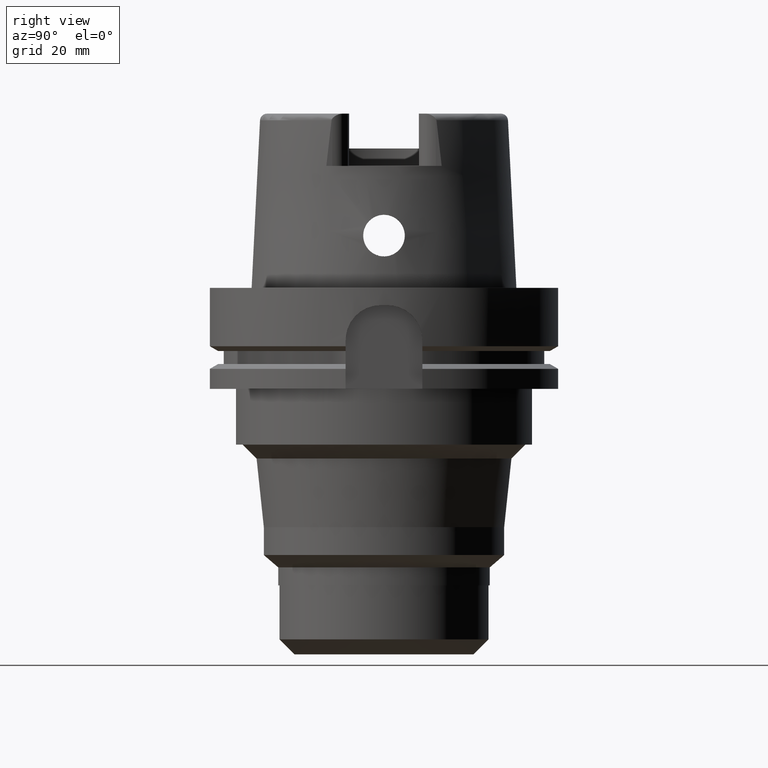
[diagram: clean part render]
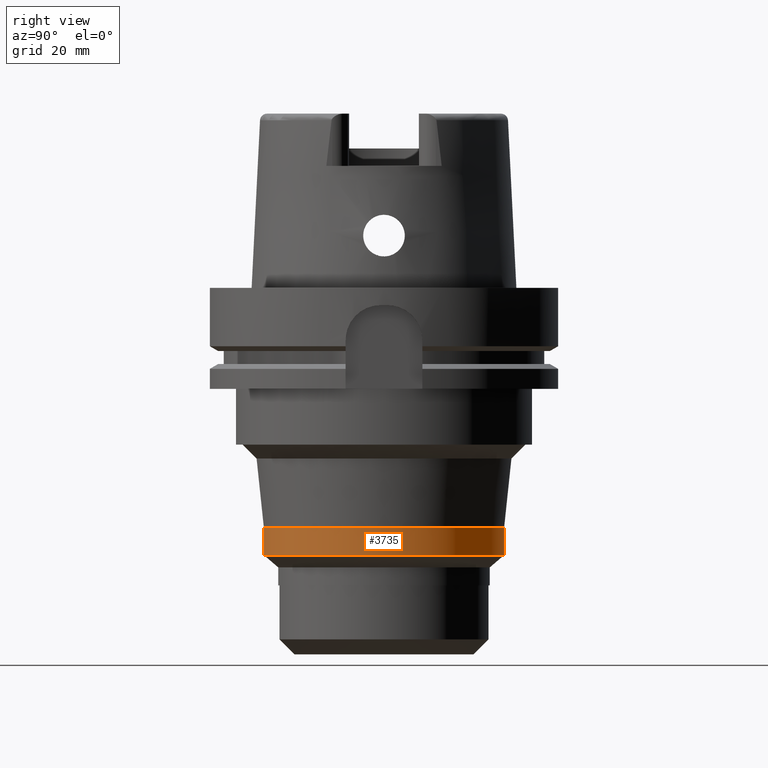
[diagram: same view with one face highlighted and labeled with its STEP entity id]
A machine part, right view. The second image highlights one B-rep face of the part: STEP entity #3735.
In plain terms, the highlighted cylindrical surface (partial cylindrical patch) has radius 34.5 mm, axis along (0, 0, -1).
Its self-contained STEP definition (entity closure, byte-faithful):
#1330=CARTESIAN_POINT('',(0.E0,0.E0,-7.67E1));
#1331=DIRECTION('',(0.E0,0.E0,1.E0));
#1332=DIRECTION('',(0.E0,-1.E0,0.E0));
#1333=AXIS2_PLACEMENT_3D('',#1330,#1331,#1332);
#1338=DIRECTION('',(0.E0,6.838973831691E-14,-1.E0));
#1339=VECTOR('',#1338,8.E0);
#1340=CARTESIAN_POINT('',(0.E0,3.45E1,-6.87E1));
#1341=LINE('',#1340,#1339);
#1345=DIRECTION('',(0.E0,-6.750155989721E-14,-1.E0));
#1346=VECTOR('',#1345,8.E0);
#1347=CARTESIAN_POINT('',(0.E0,-3.45E1,-6.87E1));
#1348=LINE('',#1347,#1346);
#1374=CARTESIAN_POINT('',(0.E0,0.E0,-6.87E1));
#1375=DIRECTION('',(0.E0,0.E0,-1.E0));
#1376=DIRECTION('',(0.E0,1.E0,0.E0));
#1377=AXIS2_PLACEMENT_3D('',#1374,#1375,#1376);
#2574=CARTESIAN_POINT('',(0.E0,3.45E1,-6.87E1));
#2575=VERTEX_POINT('',#2574);
#2576=CARTESIAN_POINT('',(0.E0,-3.45E1,-6.87E1));
#2577=VERTEX_POINT('',#2576);
#2578=CARTESIAN_POINT('',(0.E0,3.45E1,-7.67E1));
#2579=VERTEX_POINT('',#2578);
#2580=CARTESIAN_POINT('',(0.E0,-3.45E1,-7.67E1));
#2581=VERTEX_POINT('',#2580);
#3721=CARTESIAN_POINT('',(0.E0,1.932002790335E-14,5.776E1));
#3722=DIRECTION('',(0.E0,0.E0,-1.E0));
#3723=DIRECTION('',(0.E0,-1.E0,0.E0));
#3724=AXIS2_PLACEMENT_3D('',#3721,#3722,#3723);
#3725=CYLINDRICAL_SURFACE('',#3724,3.45E1);
#3727=ORIENTED_EDGE('',*,*,#3726,.T.);
#3728=ORIENTED_EDGE('',*,*,#3716,.F.);
#3730=ORIENTED_EDGE('',*,*,#3729,.F.);
#3732=ORIENTED_EDGE('',*,*,#3731,.F.);
#3733=EDGE_LOOP('',(#3727,#3728,#3730,#3732));
#3734=FACE_OUTER_BOUND('',#3733,.F.);
#1334=CIRCLE('',#1333,3.45E1);
#1378=CIRCLE('',#1377,3.45E1);
#3716=EDGE_CURVE('',#2581,#2579,#1334,.T.);
#3726=EDGE_CURVE('',#2575,#2579,#1341,.T.);
#3729=EDGE_CURVE('',#2577,#2581,#1348,.T.);
#3731=EDGE_CURVE('',#2575,#2577,#1378,.T.);
#3735=ADVANCED_FACE('',(#3734),#3725,.T.);